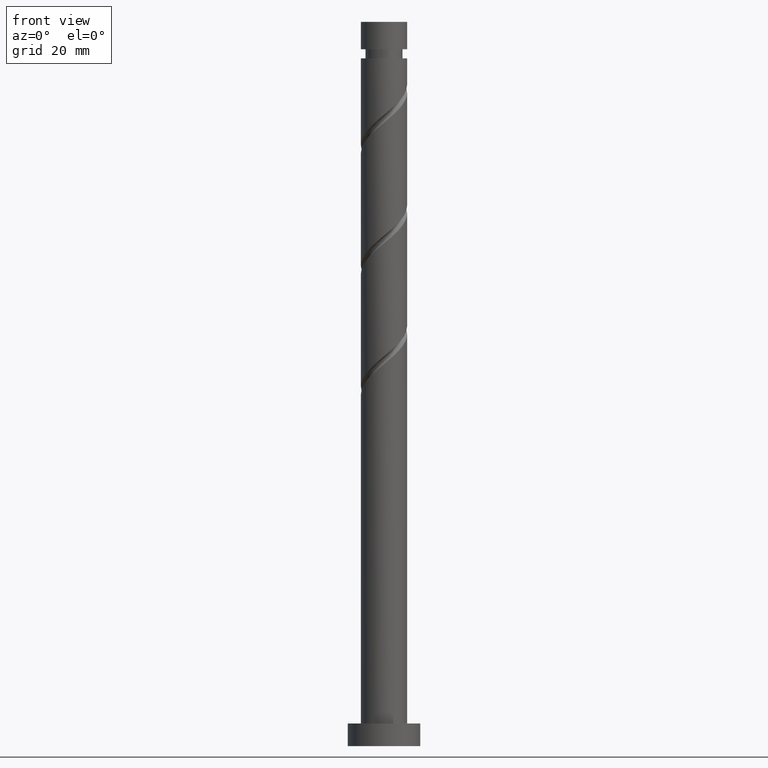
[diagram: clean part render]
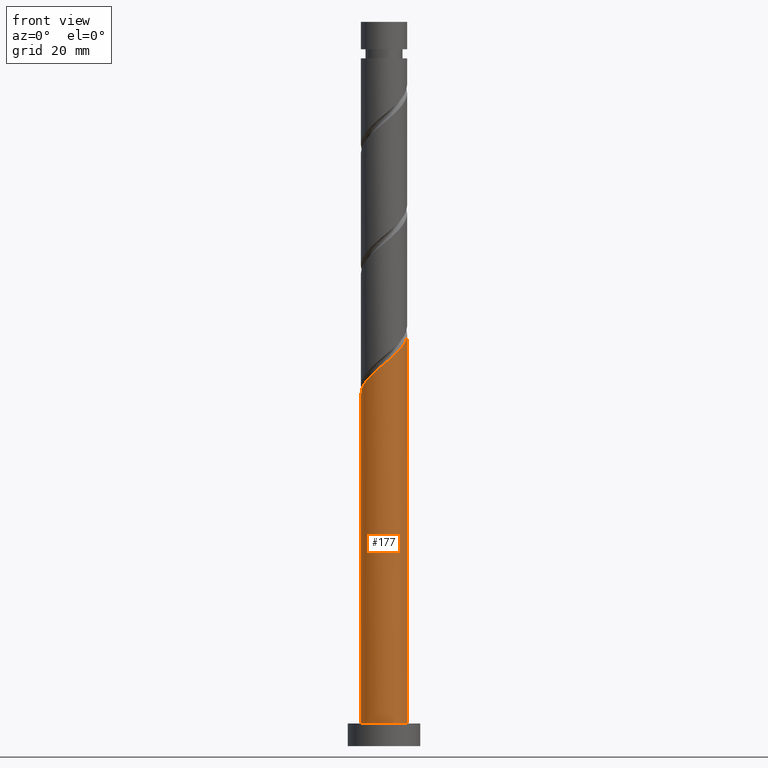
[diagram: same view with one face highlighted and labeled with its STEP entity id]
A machine part, front view. The second image highlights one B-rep face of the part: STEP entity #177.
In plain terms, the highlighted cylindrical surface (edge-blend (fillet) strip) has radius 5.1 mm, axis along (-0, -0, -1).
Its self-contained STEP definition (entity closure, byte-faithful):
#16 = VECTOR ( 'NONE', #1076, 1000.000000000000000 ) ;
#43 = CARTESIAN_POINT ( 'NONE',  ( -4.802694060801214526, -1.715846659333175817, 79.19605349217953005 ) ) ;
#123 = VERTEX_POINT ( 'NONE', #685 ) ;
#126 = EDGE_CURVE ( 'NONE', #525, #123, #551, .T. ) ;
#140 = CARTESIAN_POINT ( 'NONE',  ( 5.100000000000010303, -0.5840975296641256476, 90.58791178718006165 ) ) ;
#157 = CARTESIAN_POINT ( 'NONE',  ( 3.555900236163441086, -3.655895719307769021, 87.68090197702798605 ) ) ;
#172 = VERTEX_POINT ( 'NONE', #431 ) ;
#177 = ADVANCED_FACE ( 'NONE', ( #944 ), #1465, .T. ) ;
#194 = AXIS2_PLACEMENT_3D ( 'NONE', #1273, #850, #211 ) ;
#211 = DIRECTION ( 'NONE',  ( 1.000000000000000000, 0.000000000000000000, 0.000000000000000000 ) ) ;
#276 = CARTESIAN_POINT ( 'NONE',  ( -1.164927662982270906, -5.019026539621376237, 83.43847773460377937 ) ) ;
#295 = CARTESIAN_POINT ( 'NONE',  ( -3.693490123188846397, -3.592466363838566323, 81.01423531036137149 ) ) ;
#303 = DIRECTION ( 'NONE',  ( -0.000000000000000000, -0.000000000000000000, -1.000000000000000000 ) ) ;
#330 = DIRECTION ( 'NONE',  ( -0.000000000000000000, -0.000000000000000000, -1.000000000000000000 ) ) ;
#404 = CARTESIAN_POINT ( 'NONE',  ( -5.091561072240604169, -0.2932675359534160919, 77.98393228005829769 ) ) ;
#431 = CARTESIAN_POINT ( 'NONE',  ( -5.100000000000001421, 0.000000000000000000, 5.000000000000000000 ) ) ;
#521 = CARTESIAN_POINT ( 'NONE',  ( 1.014887185848753814, -4.998000000000006438, 85.25665955278557817 ) ) ;
#525 = VERTEX_POINT ( 'NONE', #554 ) ;
#536 = VECTOR ( 'NONE', #330, 1000.000000000000000 ) ;
#551 = LINE ( 'NONE', #1326, #16 ) ;
#554 = CARTESIAN_POINT ( 'NONE',  ( 5.100000000000009415, 3.619550610246139694E-15, 91.07387174015137532 ) ) ;
#621 = CARTESIAN_POINT ( 'NONE',  ( -5.100000000000008527, -3.873816562205578702E-15, 77.74053840681801830 ) ) ;
#628 = AXIS2_PLACEMENT_3D ( 'NONE', #919, #303, #1319 ) ;
#657 = CARTESIAN_POINT ( 'NONE',  ( -4.555992555365317109, -2.406369817974965297, 79.80211409824012492 ) ) ;
#681 = CARTESIAN_POINT ( 'NONE',  ( 4.802153594329301001, -1.867352329335637995, 89.49908379520985591 ) ) ;
#685 = CARTESIAN_POINT ( 'NONE',  ( 5.100000000000001421, 6.245698675651502811E-16, 5.000000000000000000 ) ) ;
#720 = CARTESIAN_POINT ( 'NONE',  ( -5.100000000000001421, 0.000000000000000000, 160.0000000000000000 ) ) ;
#795 = CARTESIAN_POINT ( 'NONE',  ( 1.733491099235631161, -4.852081251821315000, 85.86272015884617304 ) ) ;
#806 = CARTESIAN_POINT ( 'NONE',  ( 3.030261786617845399, -4.167156988879670010, 87.07484137096737697 ) ) ;
#814 = CARTESIAN_POINT ( 'NONE',  ( -5.100000000000007638, -0.1467551852714939487, 77.86263641153622928 ) ) ;
#821 = CARTESIAN_POINT ( 'NONE',  ( 4.081538685709038106, -3.144634449735867143, 88.28696258308862355 ) ) ;
#850 = DIRECTION ( 'NONE',  ( 0.000000000000000000, 0.000000000000000000, 1.000000000000000000 ) ) ;
#863 = ORIENTED_EDGE ( 'NONE', *, *, #1036, .T. ) ;
#883 = EDGE_CURVE ( 'NONE', #1302, #525, #1644, .T. ) ;
#919 = CARTESIAN_POINT ( 'NONE',  ( 0.000000000000000000, 0.000000000000000000, 160.0000000000000000 ) ) ;
#923 = CARTESIAN_POINT ( 'NONE',  ( -1.848345375122721679, -4.753274594872729963, 82.83241712854314187 ) ) ;
#944 = FACE_OUTER_BOUND ( 'NONE', #1605, .T. ) ;
#1036 = EDGE_CURVE ( 'NONE', #172, #123, #1219, .T. ) ;
#1056 = CARTESIAN_POINT ( 'NONE',  ( 4.441846140019168665, -2.505993389535753124, 88.89302318914923262 ) ) ;
#1066 = CARTESIAN_POINT ( 'NONE',  ( -4.124741339277082197, -2.999418090906765588, 80.40817470430073399 ) ) ;
#1076 = DIRECTION ( 'NONE',  ( -0.000000000000000000, -0.000000000000000000, -1.000000000000000000 ) ) ;
#1077 = ORIENTED_EDGE ( 'NONE', *, *, #883, .F. ) ;
#1119 = ORIENTED_EDGE ( 'NONE', *, *, #1146, .T. ) ;
#1146 = EDGE_CURVE ( 'NONE', #1302, #172, #1636, .T. ) ;
#1170 = CARTESIAN_POINT ( 'NONE',  ( -5.049395566237111943, -1.025323500691386780, 78.58999288611887835 ) ) ;
#1203 = CARTESIAN_POINT ( 'NONE',  ( -0.4343221952601974412, -5.081472643900038832, 84.04453834066438844 ) ) ;
#1219 = CIRCLE ( 'NONE', #194, 5.100000000000001421 ) ;
#1273 = CARTESIAN_POINT ( 'NONE',  ( 0.000000000000000000, 0.000000000000000000, 5.000000000000000000 ) ) ;
#1302 = VERTEX_POINT ( 'NONE', #621 ) ;
#1312 = CARTESIAN_POINT ( 'NONE',  ( 2.381876442926737170, -4.509619120350493837, 86.46878076490676790 ) ) ;
#1319 = DIRECTION ( 'NONE',  ( -1.000000000000000000, 0.000000000000000000, 0.000000000000000000 ) ) ;
#1322 = CARTESIAN_POINT ( 'NONE',  ( 4.967940086286699142, -1.153070379060096906, 90.10514440127040814 ) ) ;
#1326 = CARTESIAN_POINT ( 'NONE',  ( 5.100000000000001421, 6.245698675651502811E-16, 160.0000000000000000 ) ) ;
#1330 = CARTESIAN_POINT ( 'NONE',  ( 5.100000000000009415, 3.619550610246139694E-15, 91.07387174015138953 ) ) ;
#1397 = ORIENTED_EDGE ( 'NONE', *, *, #126, .F. ) ;
#1426 = CARTESIAN_POINT ( 'NONE',  ( 0.2962832724618764124, -5.143918748178701428, 84.65059894672496910 ) ) ;
#1465 = CYLINDRICAL_SURFACE ( 'NONE', #628, 5.100000000000001421 ) ;
#1562 = CARTESIAN_POINT ( 'NONE',  ( -5.100000000000009415, -3.873816562205578702E-15, 77.74053840681801830 ) ) ;
#1572 = CARTESIAN_POINT ( 'NONE',  ( -3.112626605226008092, -4.039994506981326339, 81.62029591642193793 ) ) ;
#1578 = CARTESIAN_POINT ( 'NONE',  ( -2.531763087263172007, -4.487522650124088130, 82.22635652248256122 ) ) ;
#1605 = EDGE_LOOP ( 'NONE', ( #1397, #1077, #1119, #863 ) ) ;
#1636 = LINE ( 'NONE', #720, #536 ) ;
#1644 =( BOUNDED_CURVE ( )  B_SPLINE_CURVE ( 2, ( #1562, #814, #404, #1170, #43, #657, #1066, #295, #1572, #1578, #923, #276, #1203, #1426, #521, #795, #1312, #806, #157, #821, #1056, #681, #1322, #140, #1330 ),
 .UNSPECIFIED., .F., .T. ) 
 B_SPLINE_CURVE_WITH_KNOTS ( ( 3, 2, 2, 2, 2, 2, 2, 2, 2, 2, 2, 2, 3 ),
 ( 0.05452521624175128701, 0.05681818181818176772, 0.06818181818181823228, 0.07954545454545458583, 0.09090909090909093937, 0.1022727272727272929, 0.1136363636363636465, 0.1250000000000000000, 0.1363636363636363535, 0.1477272727272727071, 0.1590909090909090606, 0.1704545454545454142, 0.1795252162417513286 ),
 .UNSPECIFIED. ) 
 CURVE ( )  GEOMETRIC_REPRESENTATION_ITEM ( )  RATIONAL_B_SPLINE_CURVE ( ( 0.9061101570135586813, 0.9072237824201407896, 0.9090909090909183865, 0.8998376744372206248, 0.9090909090909183865, 0.8998376744372206248, 0.9090909090909183865, 0.8998376744372206248, 0.9090909090909183865, 0.8998376744372206248, 0.9090909090909183865, 0.8998376744372206248, 0.9090909090909183865, 0.8998376744372206248, 0.9090909090909183865, 0.8998376744372206248, 0.9090909090909183865, 0.8998376744372206248, 0.9090909090909183865, 0.8998376744372206248, 0.9090909090909183865, 0.8998376744372206248, 0.9090909090909183865, 0.9017048011079981107, 0.9061101570135587924 ) ) 
 REPRESENTATION_ITEM ( '' )  );